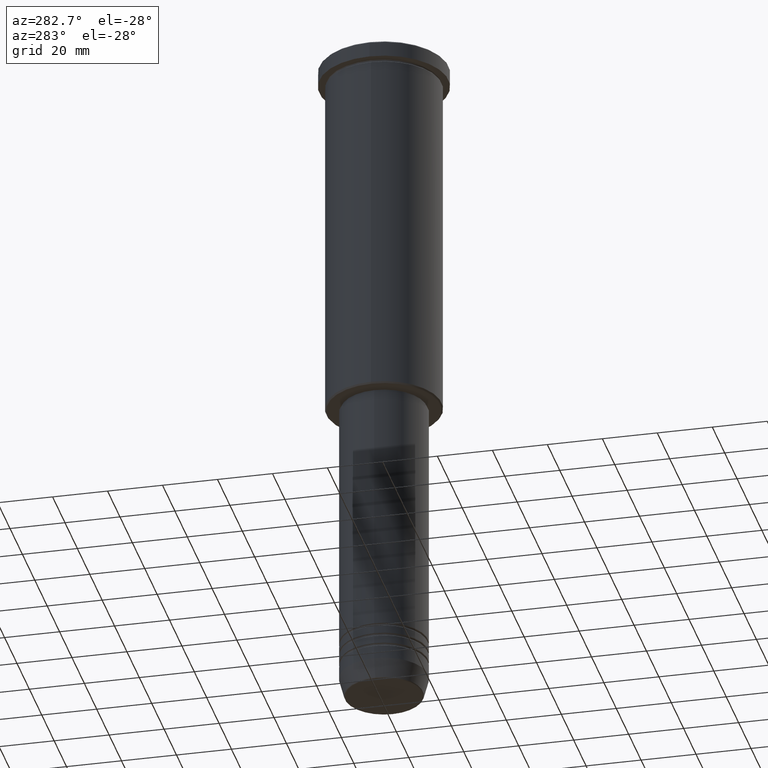
[diagram: clean part render]
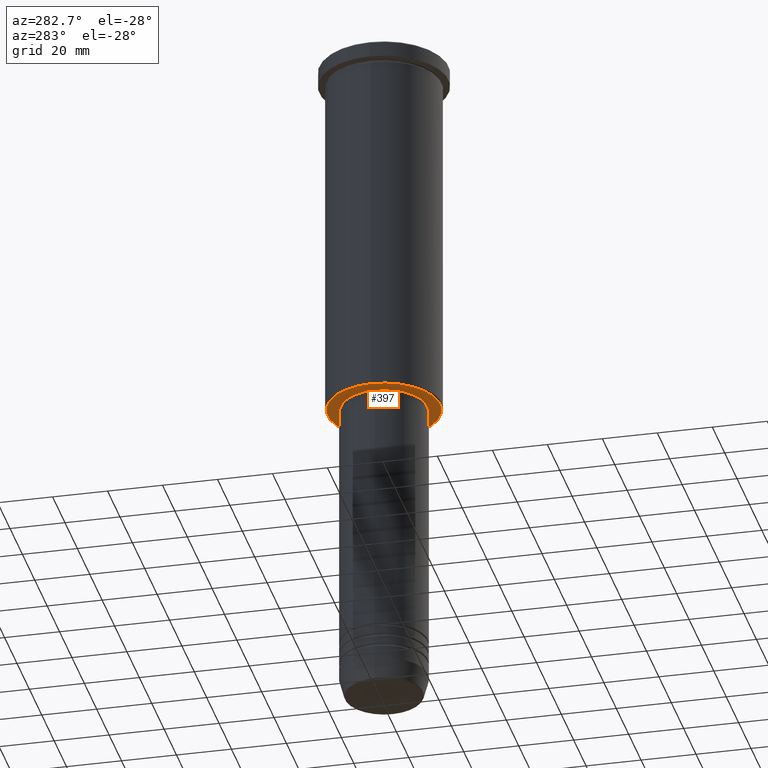
[diagram: same view with one face highlighted and labeled with its STEP entity id]
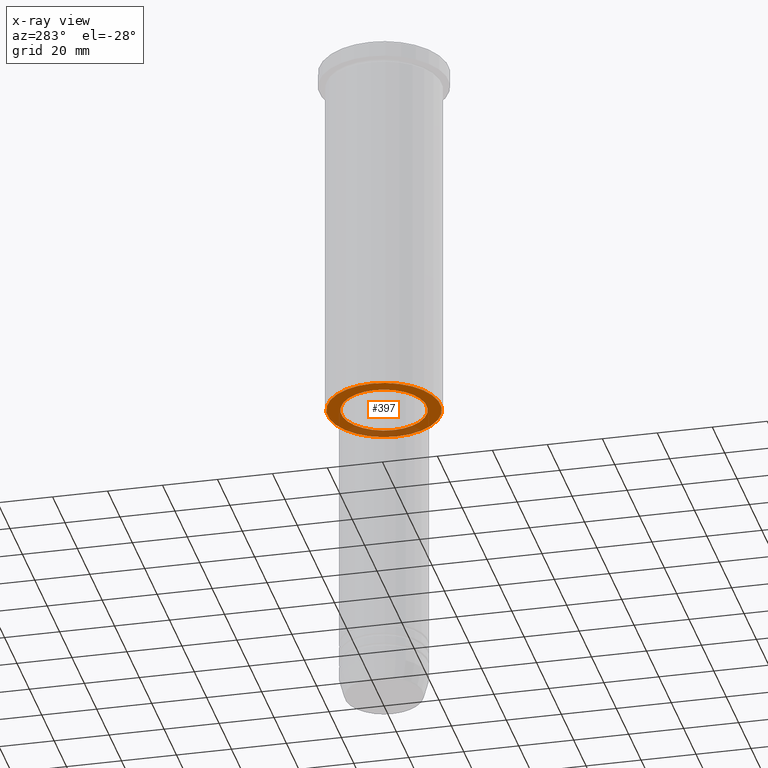
[diagram: x-ray of the same camera — body ghosted, the highlighted face saturated]
A machine part, auxiliary view. The second image highlights one B-rep face of the part: STEP entity #397.
The next image is the same camera in x-ray: the body ghosted, the highlighted face saturated — about 22% of this face is hidden behind the body in this view.
In plain terms, the highlighted planar face has unit normal (0, 0, -1).
Its self-contained STEP definition (entity closure, byte-faithful):
#41 = EDGE_CURVE ( 'NONE', #815, #278, #575, .T. ) ;
#42 = CARTESIAN_POINT ( 'NONE',  ( -20.49999999999998934, 2.541142108230757480E-15, -136.0000000000000000 ) ) ;
#63 = CARTESIAN_POINT ( 'NONE',  ( 0.000000000000000000, 0.000000000000000000, -136.0000000000000000 ) ) ;
#130 = EDGE_CURVE ( 'NONE', #477, #420, #1158, .T. ) ;
#141 = AXIS2_PLACEMENT_3D ( 'NONE', #986, #825, #1079 ) ;
#176 = EDGE_LOOP ( 'NONE', ( #714, #899 ) ) ;
#188 = ORIENTED_EDGE ( 'NONE', *, *, #41, .T. ) ;
#230 = EDGE_CURVE ( 'NONE', #278, #815, #1077, .T. ) ;
#261 = CARTESIAN_POINT ( 'NONE',  ( -15.50000000000000000, 1.898202538678397557E-15, -136.0000000000000000 ) ) ;
#278 = VERTEX_POINT ( 'NONE', #261 ) ;
#353 = AXIS2_PLACEMENT_3D ( 'NONE', #810, #1062, #1050 ) ;
#364 = EDGE_LOOP ( 'NONE', ( #188, #997 ) ) ;
#393 = DIRECTION ( 'NONE',  ( 0.000000000000000000, 0.000000000000000000, -1.000000000000000000 ) ) ;
#397 = ADVANCED_FACE ( 'NONE', ( #976, #514 ), #697, .T. ) ;
#420 = VERTEX_POINT ( 'NONE', #1165 ) ;
#469 = EDGE_CURVE ( 'NONE', #420, #477, #669, .T. ) ;
#477 = VERTEX_POINT ( 'NONE', #42 ) ;
#480 = DIRECTION ( 'NONE',  ( -1.000000000000000000, 0.000000000000000000, 0.000000000000000000 ) ) ;
#514 = FACE_BOUND ( 'NONE', #364, .T. ) ;
#543 = DIRECTION ( 'NONE',  ( 0.000000000000000000, 0.000000000000000000, -1.000000000000000000 ) ) ;
#575 = CIRCLE ( 'NONE', #682, 15.50000000000000000 ) ;
#586 = DIRECTION ( 'NONE',  ( -0.000000000000000000, -0.000000000000000000, 1.000000000000000000 ) ) ;
#669 = CIRCLE ( 'NONE', #1160, 20.49999999999998934 ) ;
#682 = AXIS2_PLACEMENT_3D ( 'NONE', #1031, #586, #946 ) ;
#697 = PLANE ( 'NONE',  #353 ) ;
#714 = ORIENTED_EDGE ( 'NONE', *, *, #469, .T. ) ;
#809 = DIRECTION ( 'NONE',  ( -1.000000000000000000, 0.000000000000000000, 0.000000000000000000 ) ) ;
#810 = CARTESIAN_POINT ( 'NONE',  ( 0.000000000000000000, 21.00000000000000000, -136.0000000000000000 ) ) ;
#811 = CARTESIAN_POINT ( 'NONE',  ( 15.50000000000000000, 0.000000000000000000, -136.0000000000000000 ) ) ;
#815 = VERTEX_POINT ( 'NONE', #811 ) ;
#825 = DIRECTION ( 'NONE',  ( -0.000000000000000000, -0.000000000000000000, 1.000000000000000000 ) ) ;
#899 = ORIENTED_EDGE ( 'NONE', *, *, #130, .T. ) ;
#946 = DIRECTION ( 'NONE',  ( 1.000000000000000000, 0.000000000000000000, 0.000000000000000000 ) ) ;
#976 = FACE_OUTER_BOUND ( 'NONE', #176, .T. ) ;
#978 = CARTESIAN_POINT ( 'NONE',  ( 0.000000000000000000, 0.000000000000000000, -136.0000000000000000 ) ) ;
#986 = CARTESIAN_POINT ( 'NONE',  ( 0.000000000000000000, 0.000000000000000000, -136.0000000000000000 ) ) ;
#997 = ORIENTED_EDGE ( 'NONE', *, *, #230, .T. ) ;
#1031 = CARTESIAN_POINT ( 'NONE',  ( 0.000000000000000000, 0.000000000000000000, -136.0000000000000000 ) ) ;
#1050 = DIRECTION ( 'NONE',  ( -1.000000000000000000, 0.000000000000000000, -0.000000000000000000 ) ) ;
#1062 = DIRECTION ( 'NONE',  ( 0.000000000000000000, 0.000000000000000000, -1.000000000000000000 ) ) ;
#1077 = CIRCLE ( 'NONE', #141, 15.50000000000000000 ) ;
#1079 = DIRECTION ( 'NONE',  ( 1.000000000000000000, 0.000000000000000000, 0.000000000000000000 ) ) ;
#1094 = AXIS2_PLACEMENT_3D ( 'NONE', #978, #393, #809 ) ;
#1158 = CIRCLE ( 'NONE', #1094, 20.49999999999998934 ) ;
#1160 = AXIS2_PLACEMENT_3D ( 'NONE', #63, #543, #480 ) ;
#1165 = CARTESIAN_POINT ( 'NONE',  ( 20.49999999999998934, 0.000000000000000000, -136.0000000000000000 ) ) ;